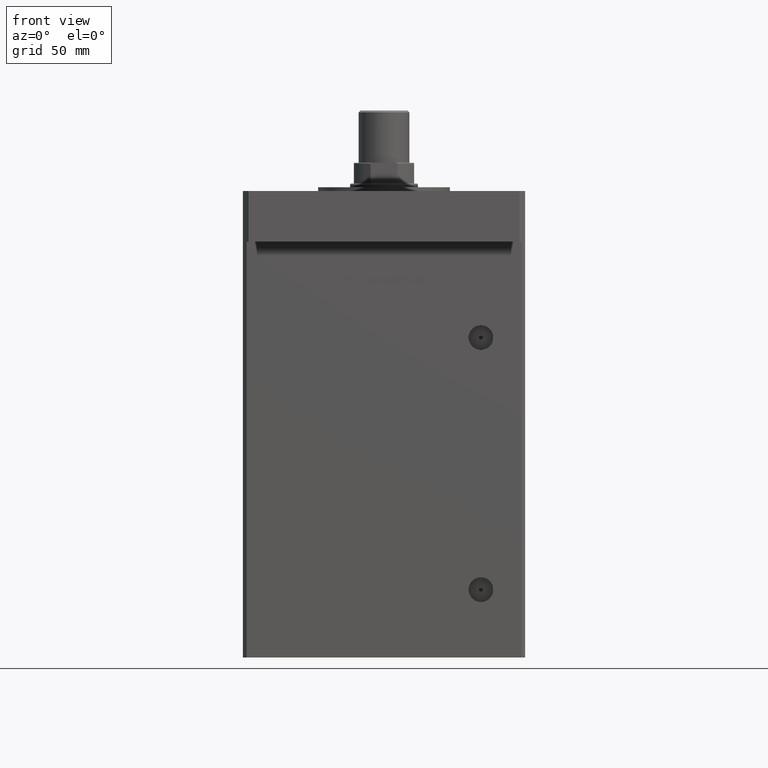
[diagram: clean part render]
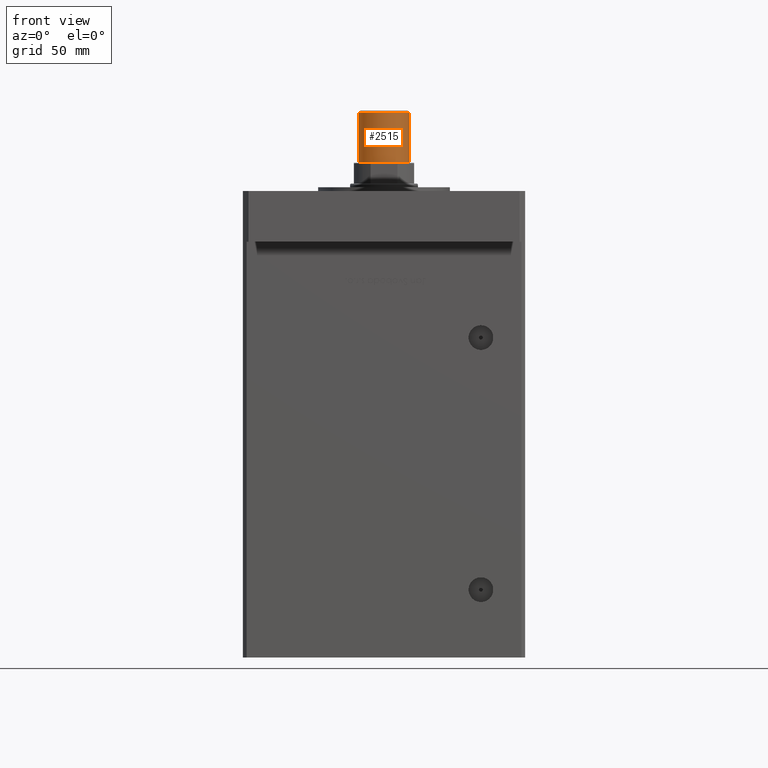
[diagram: same view with one face highlighted and labeled with its STEP entity id]
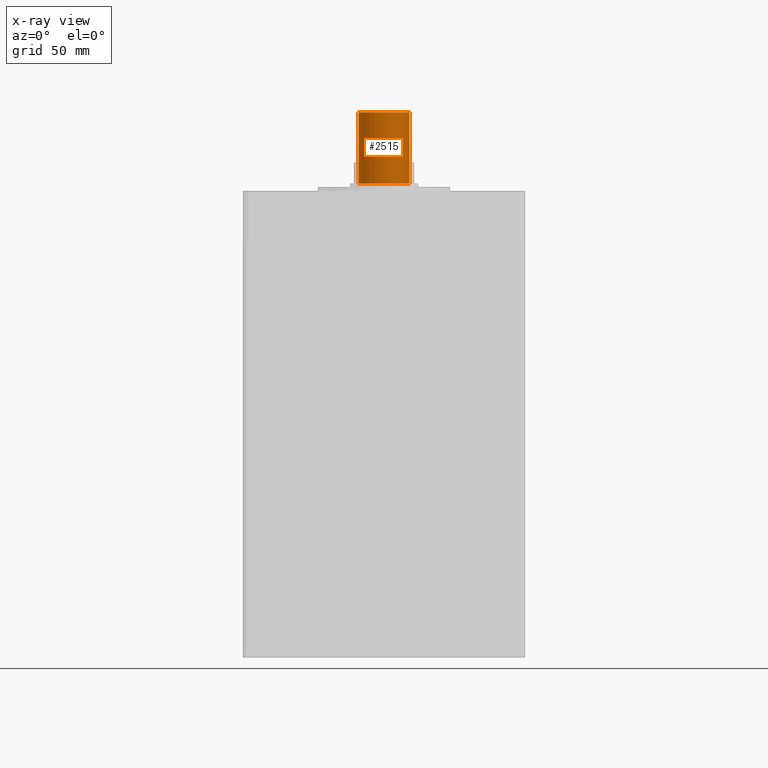
[diagram: x-ray of the same camera — body ghosted, the highlighted face saturated]
A machine part, front view. The second image highlights one B-rep face of the part: STEP entity #2515.
The next image is the same camera in x-ray: the body ghosted, the highlighted face saturated — about 0% of this face is hidden behind the body in this view.
In plain terms, the highlighted cylindrical surface (edge-blend (fillet) strip) has radius 13.5 mm, axis along (-0, -0, -1).
Its self-contained STEP definition (entity closure, byte-faithful):
#1155 = CYLINDRICAL_SURFACE ( 'NONE', #11671, 13.50000000000000000 ) ;
#2138 = EDGE_CURVE ( 'NONE', #7096, #19666, #46909, .T. ) ;
#2515 = ADVANCED_FACE ( 'NONE', ( #23011 ), #1155, .T. ) ;
#4320 = EDGE_LOOP ( 'NONE', ( #8302, #41177, #53711, #9473 ) ) ;
#5095 = CARTESIAN_POINT ( 'NONE',  ( 13.50000000000000000, 1.653273178848926867E-15, 74.00000000000001421 ) ) ;
#5914 = EDGE_CURVE ( 'NONE', #35304, #19666, #50682, .T. ) ;
#7096 = VERTEX_POINT ( 'NONE', #30445 ) ;
#7457 = AXIS2_PLACEMENT_3D ( 'NONE', #36874, #20529, #50120 ) ;
#8302 = ORIENTED_EDGE ( 'NONE', *, *, #2138, .F. ) ;
#9362 = DIRECTION ( 'NONE',  ( -0.000000000000000000, -0.000000000000000000, -1.000000000000000000 ) ) ;
#9473 = ORIENTED_EDGE ( 'NONE', *, *, #5914, .T. ) ;
#11671 = AXIS2_PLACEMENT_3D ( 'NONE', #51785, #34920, #47381 ) ;
#12985 = EDGE_CURVE ( 'NONE', #7096, #52559, #39278, .T. ) ;
#19444 = DIRECTION ( 'NONE',  ( -0.000000000000000000, -0.000000000000000000, 1.000000000000000000 ) ) ;
#19666 = VERTEX_POINT ( 'NONE', #45279 ) ;
#20529 = DIRECTION ( 'NONE',  ( 0.000000000000000000, 0.000000000000000000, -1.000000000000000000 ) ) ;
#20964 = CARTESIAN_POINT ( 'NONE',  ( -13.50000000000000000, 0.000000000000000000, 34.99999999999999289 ) ) ;
#21979 = DIRECTION ( 'NONE',  ( -0.000000000000000000, -0.000000000000000000, -1.000000000000000000 ) ) ;
#23011 = FACE_OUTER_BOUND ( 'NONE', #4320, .T. ) ;
#23039 = CARTESIAN_POINT ( 'NONE',  ( 0.000000000000000000, 0.000000000000000000, 34.99999999999999289 ) ) ;
#24160 = AXIS2_PLACEMENT_3D ( 'NONE', #23039, #19444, #31626 ) ;
#26637 = VECTOR ( 'NONE', #21979, 1000.000000000000000 ) ;
#30445 = CARTESIAN_POINT ( 'NONE',  ( 13.50000000000000000, 1.653273178848926867E-15, 73.00000000000001421 ) ) ;
#31626 = DIRECTION ( 'NONE',  ( 1.000000000000000000, 0.000000000000000000, 0.000000000000000000 ) ) ;
#34562 = CARTESIAN_POINT ( 'NONE',  ( -13.50000000000000000, 0.000000000000000000, 74.00000000000001421 ) ) ;
#34872 = EDGE_CURVE ( 'NONE', #52559, #35304, #51700, .T. ) ;
#34920 = DIRECTION ( 'NONE',  ( -0.000000000000000000, -0.000000000000000000, -1.000000000000000000 ) ) ;
#35304 = VERTEX_POINT ( 'NONE', #20964 ) ;
#36874 = CARTESIAN_POINT ( 'NONE',  ( 0.000000000000000000, 0.000000000000000000, 73.00000000000001421 ) ) ;
#39278 = CIRCLE ( 'NONE', #7457, 13.50000000000000000 ) ;
#39652 = CARTESIAN_POINT ( 'NONE',  ( -13.50000000000000000, 0.000000000000000000, 73.00000000000001421 ) ) ;
#41177 = ORIENTED_EDGE ( 'NONE', *, *, #12985, .T. ) ;
#41422 = VECTOR ( 'NONE', #9362, 1000.000000000000000 ) ;
#45279 = CARTESIAN_POINT ( 'NONE',  ( 13.50000000000000000, 1.653273178848926867E-15, 34.99999999999999289 ) ) ;
#46909 = LINE ( 'NONE', #5095, #26637 ) ;
#47381 = DIRECTION ( 'NONE',  ( -1.000000000000000000, 0.000000000000000000, 0.000000000000000000 ) ) ;
#50120 = DIRECTION ( 'NONE',  ( 1.000000000000000000, 0.000000000000000000, 0.000000000000000000 ) ) ;
#50682 = CIRCLE ( 'NONE', #24160, 13.50000000000000000 ) ;
#51700 = LINE ( 'NONE', #34562, #41422 ) ;
#51785 = CARTESIAN_POINT ( 'NONE',  ( 0.000000000000000000, 0.000000000000000000, 74.00000000000001421 ) ) ;
#52559 = VERTEX_POINT ( 'NONE', #39652 ) ;
#53711 = ORIENTED_EDGE ( 'NONE', *, *, #34872, .T. ) ;